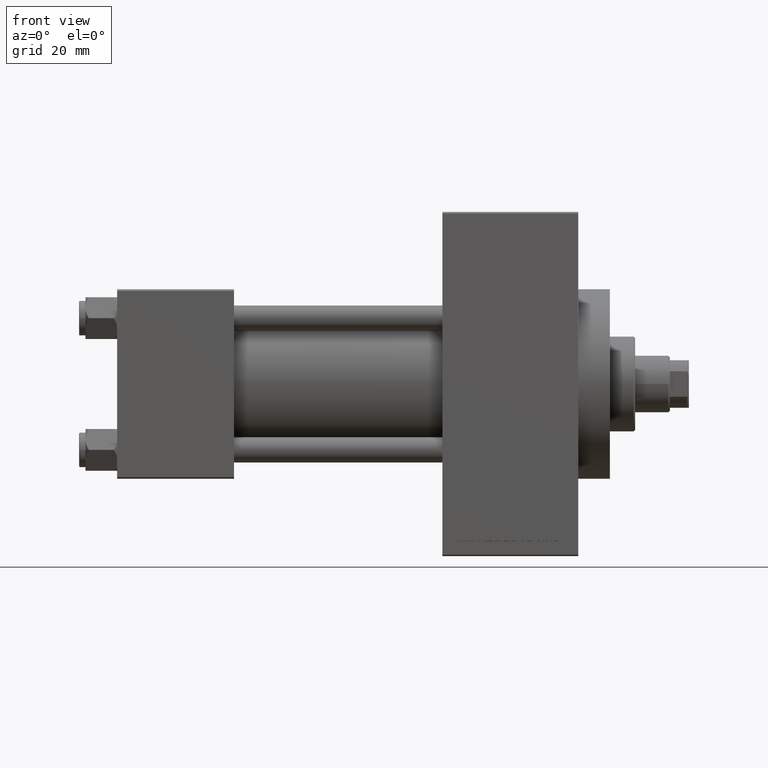
[diagram: clean part render]
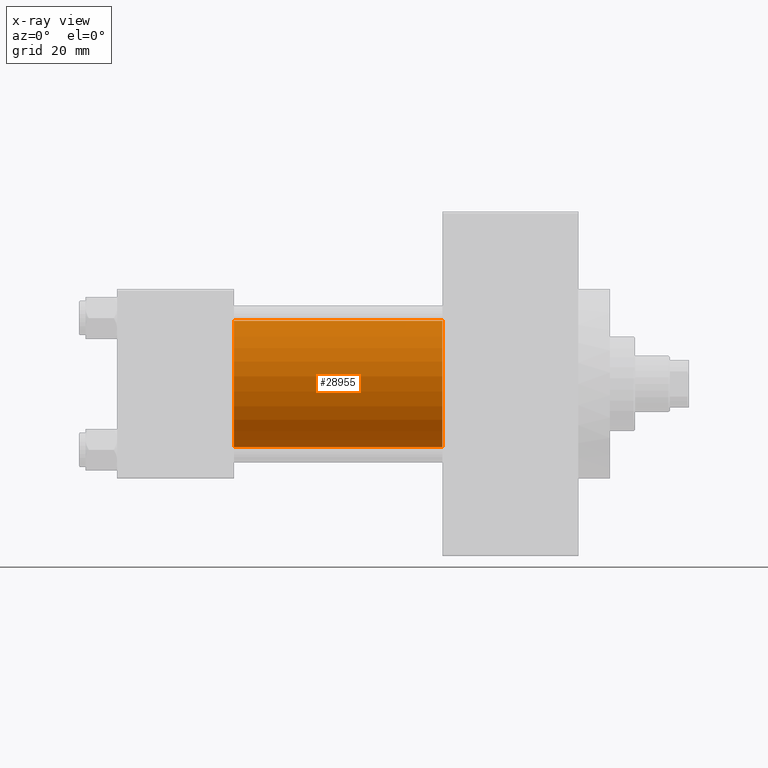
[diagram: x-ray — body ghosted, one internal face saturated and labeled with its STEP entity id]
A machine part, front view, then the same camera in x-ray: the body is ghosted and one INTERNAL B-rep face — a face not visible from any outside direction — is saturated and labeled: STEP entity #28955.
In plain terms, the highlighted cylindrical surface (partial cylindrical patch) has radius 20 mm, axis along (-1, -0, -0).
Its self-contained STEP definition (entity closure, byte-faithful):
#253 = CARTESIAN_POINT ( 'NONE',  ( 103.0000000000000142, -2.602085213965210642E-15, 20.00000000000000000 ) ) ;
#1969 = DIRECTION ( 'NONE',  ( 0.000000000000000000, 0.000000000000000000, 1.000000000000000000 ) ) ;
#2464 = AXIS2_PLACEMENT_3D ( 'NONE', #12222, #19473, #27209 ) ;
#3421 = EDGE_CURVE ( 'NONE', #18570, #31665, #24736, .T. ) ;
#3946 = CARTESIAN_POINT ( 'NONE',  ( 103.0000000000000142, -1.527916156705042519E-16, -20.00000000000000000 ) ) ;
#4512 = AXIS2_PLACEMENT_3D ( 'NONE', #19428, #8681, #34636 ) ;
#7921 = LINE ( 'NONE', #3946, #15929 ) ;
#8681 = DIRECTION ( 'NONE',  ( 1.000000000000000000, 0.000000000000000000, 0.000000000000000000 ) ) ;
#11397 = ORIENTED_EDGE ( 'NONE', *, *, #24688, .F. ) ;
#12222 = CARTESIAN_POINT ( 'NONE',  ( 103.0000000000000142, -2.602085213965210642E-15, 0.000000000000000000 ) ) ;
#12828 = CARTESIAN_POINT ( 'NONE',  ( 103.0000000000000142, -2.602085213965210642E-15, 20.00000000000000000 ) ) ;
#13806 = VERTEX_POINT ( 'NONE', #25360 ) ;
#14599 = DIRECTION ( 'NONE',  ( -1.000000000000000000, -0.000000000000000000, -0.000000000000000000 ) ) ;
#15929 = VECTOR ( 'NONE', #23136, 1000.000000000000000 ) ;
#17241 = ORIENTED_EDGE ( 'NONE', *, *, #3421, .T. ) ;
#18057 = CIRCLE ( 'NONE', #4512, 20.00000000000000000 ) ;
#18570 = VERTEX_POINT ( 'NONE', #12828 ) ;
#18684 = ORIENTED_EDGE ( 'NONE', *, *, #32257, .T. ) ;
#18838 = CARTESIAN_POINT ( 'NONE',  ( 103.0000000000000142, -2.602085213965210642E-15, 0.000000000000000000 ) ) ;
#19428 = CARTESIAN_POINT ( 'NONE',  ( 37.00000000000000000, -2.602085213965210642E-15, 0.000000000000000000 ) ) ;
#19473 = DIRECTION ( 'NONE',  ( 1.000000000000000000, 0.000000000000000000, 0.000000000000000000 ) ) ;
#23136 = DIRECTION ( 'NONE',  ( -1.000000000000000000, -0.000000000000000000, -0.000000000000000000 ) ) ;
#24688 = EDGE_CURVE ( 'NONE', #18570, #13806, #37407, .T. ) ;
#24736 = CIRCLE ( 'NONE', #2464, 20.00000000000000000 ) ;
#24848 = EDGE_CURVE ( 'NONE', #13806, #28355, #18057, .T. ) ;
#25360 = CARTESIAN_POINT ( 'NONE',  ( 37.00000000000000000, -2.602085213965210642E-15, 20.00000000000000000 ) ) ;
#26081 = FACE_OUTER_BOUND ( 'NONE', #28162, .T. ) ;
#26816 = CARTESIAN_POINT ( 'NONE',  ( 103.0000000000000142, -1.527916156705042519E-16, -20.00000000000000000 ) ) ;
#27008 = ORIENTED_EDGE ( 'NONE', *, *, #24848, .F. ) ;
#27209 = DIRECTION ( 'NONE',  ( 0.000000000000000000, 0.000000000000000000, -1.000000000000000000 ) ) ;
#28162 = EDGE_LOOP ( 'NONE', ( #17241, #18684, #27008, #11397 ) ) ;
#28355 = VERTEX_POINT ( 'NONE', #37955 ) ;
#28955 = ADVANCED_FACE ( 'NONE', ( #26081 ), #49260, .F. ) ;
#30426 = DIRECTION ( 'NONE',  ( -1.000000000000000000, -0.000000000000000000, -0.000000000000000000 ) ) ;
#31665 = VERTEX_POINT ( 'NONE', #26816 ) ;
#32257 = EDGE_CURVE ( 'NONE', #31665, #28355, #7921, .T. ) ;
#33229 = VECTOR ( 'NONE', #30426, 1000.000000000000000 ) ;
#34636 = DIRECTION ( 'NONE',  ( 0.000000000000000000, 0.000000000000000000, -1.000000000000000000 ) ) ;
#37407 = LINE ( 'NONE', #253, #33229 ) ;
#37955 = CARTESIAN_POINT ( 'NONE',  ( 37.00000000000000000, -1.527916156705042519E-16, -20.00000000000000000 ) ) ;
#46858 = AXIS2_PLACEMENT_3D ( 'NONE', #18838, #14599, #1969 ) ;
#49260 = CYLINDRICAL_SURFACE ( 'NONE', #46858, 20.00000000000000000 ) ;